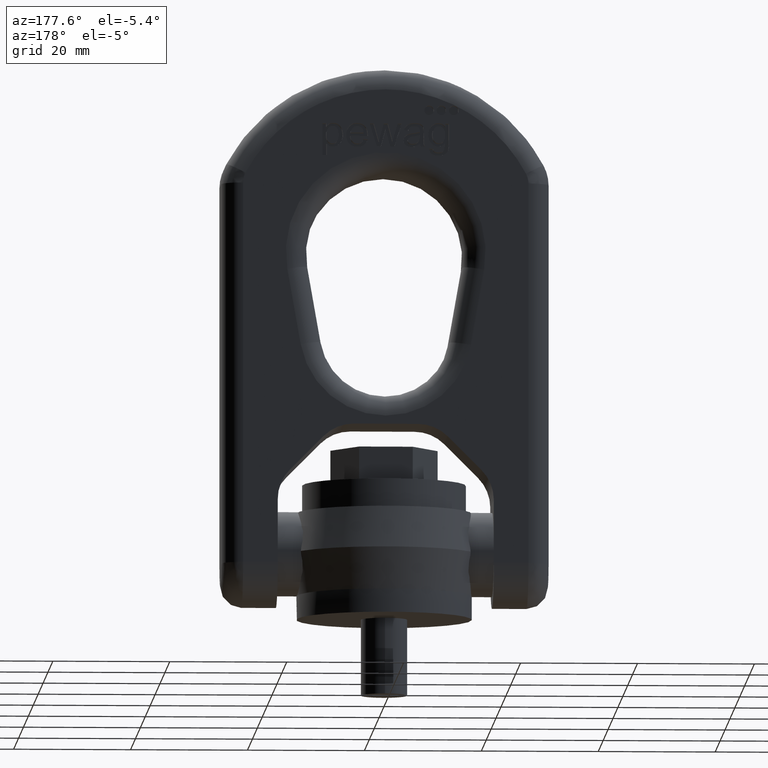
[diagram: clean part render]
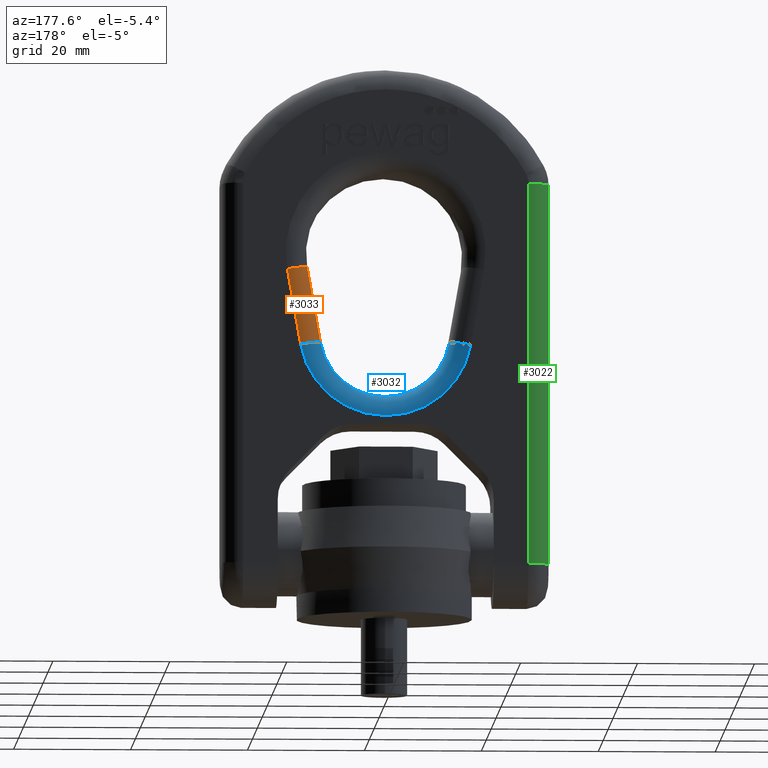
[diagram: same view with three faces highlighted in distinct colors, each labeled with its STEP entity id]
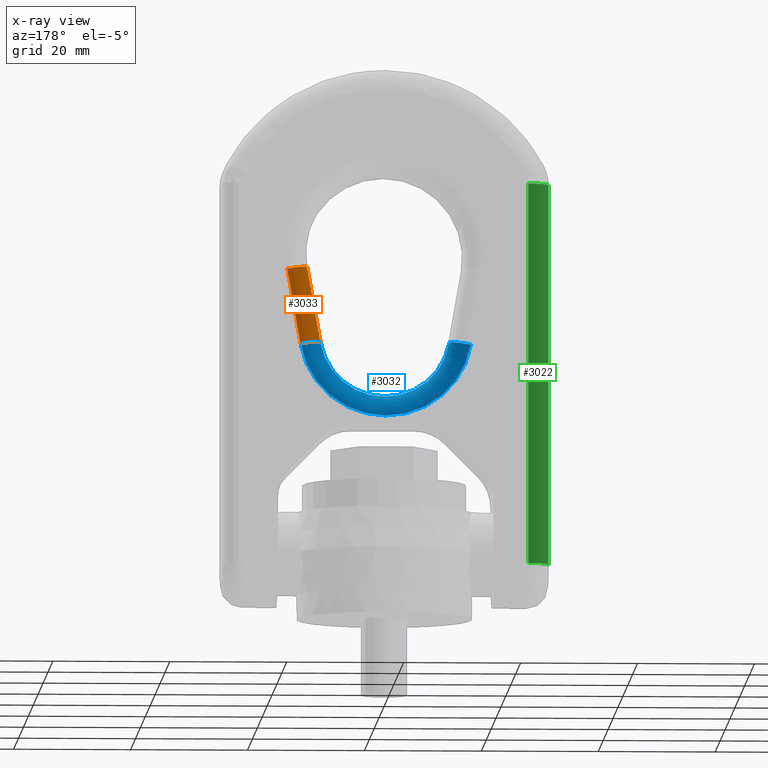
[diagram: x-ray of the same camera — body ghosted, the three highlighted faces saturated]
A machine part, auxiliary view with three faces highlighted in distinct colors.
The next image is the same camera in x-ray (body ghosted, the three faces saturated) — at least one of them is partly hidden behind the body in this view.
Their STEP definitions:

[orange] entity #3033 — the highlighted cylindrical surface (edge-blend (fillet) strip) has radius 3.6 mm, axis along (-0.1736, 0, -0.9848).
#1815=LINE('',#7395,#2123);
#1861=LINE('',#7736,#2169);
#2123=VECTOR('',#6260,1.);
#2169=VECTOR('',#6340,1.);
#2658=FACE_OUTER_BOUND('',#3426,.T.);
#3033=ADVANCED_FACE('',(#2658),#3065,.T.);
#3065=CYLINDRICAL_SURFACE('',#6052,3.6);
#3426=EDGE_LOOP('',(#4669,#4670,#4671,#4672));
#4669=ORIENTED_EDGE('',*,*,#5742,.T.);
#4670=ORIENTED_EDGE('',*,*,#5357,.F.);
#4671=ORIENTED_EDGE('',*,*,#5743,.F.);
#4672=ORIENTED_EDGE('',*,*,#5263,.F.);
#4827=VERTEX_POINT('',#7396);
#4828=VERTEX_POINT('',#7397);
#4915=VERTEX_POINT('',#7731);
#4917=VERTEX_POINT('',#7737);
#5263=EDGE_CURVE('',#4827,#4828,#1815,.T.);
#5357=EDGE_CURVE('',#4915,#4917,#1861,.T.);
#5742=EDGE_CURVE('',#4827,#4917,#5820,.T.);
#5743=EDGE_CURVE('',#4828,#4915,#5821,.T.);
#5820=CIRCLE('',#6049,3.6);
#5821=CIRCLE('',#6051,3.6);
#6049=AXIS2_PLACEMENT_3D('',#9830,#6906,#6907);
#6051=AXIS2_PLACEMENT_3D('',#9832,#6910,#6911);
#6052=AXIS2_PLACEMENT_3D('',#9833,#6912,#6913);
#6260=DIRECTION('',(0.173648177666931,-4.0684217855581E-16,0.984807753012208));
#6340=DIRECTION('',(-0.173648177666931,4.0684217855581E-16,-0.984807753012208));
#6906=DIRECTION('',(0.173648177666931,-4.18377181054746E-16,0.984807753012208));
#6907=DIRECTION('',(0.984807753012208,0.,-0.173648177666931));
#6910=DIRECTION('',(0.173648177666929,-3.34701744843793E-16,0.984807753012208));
#6911=DIRECTION('',(0.984807753012208,0.,-0.173648177666929));
#6912=DIRECTION('',(-0.173648177666931,4.0684217855581E-16,-0.984807753012208));
#6913=DIRECTION('',(-0.984807753012208,0.,0.173648177666931));
#7395=CARTESIAN_POINT('',(16.8402125765088,7.19999999999996,59.5306161618955));
#7396=CARTESIAN_POINT('',(14.5638083411067,7.19999999999997,46.6204862075592));
#7397=CARTESIAN_POINT('',(16.8402125765088,7.19999999999996,59.5306161618955));
#7731=CARTESIAN_POINT('',(13.2949046656648,3.59999999999996,60.1557496014964));
#7736=CARTESIAN_POINT('',(11.0185004302628,3.59999999999997,47.2456196471602));
#7737=CARTESIAN_POINT('',(11.0185004302628,3.59999999999998,47.2456196471602));
#9830=CARTESIAN_POINT('',(14.5638083411067,3.59999999999997,46.6204862075592));
#9832=CARTESIAN_POINT('',(16.8402125765088,3.59999999999996,59.5306161618955));
#9833=CARTESIAN_POINT('',(16.9637198504875,3.59999999999996,60.2310607194015));

[blue] entity #3032 — the highlighted toroidal blend (fillet) surface has major radius 14.7885 mm and minor (blend) radius 3.6 mm.
#203=TOROIDAL_SURFACE('',#6050,14.7884785599634,3.6);
#2657=FACE_OUTER_BOUND('',#3425,.T.);
#3032=ADVANCED_FACE('',(#2657),#203,.T.);
#3425=EDGE_LOOP('',(#4665,#4666,#4667,#4668));
#4665=ORIENTED_EDGE('',*,*,#5741,.F.);
#4666=ORIENTED_EDGE('',*,*,#5372,.F.);
#4667=ORIENTED_EDGE('',*,*,#5742,.F.);
#4668=ORIENTED_EDGE('',*,*,#5266,.F.);
#4827=VERTEX_POINT('',#7396);
#4830=VERTEX_POINT('',#7401);
#4912=VERTEX_POINT('',#7723);
#4917=VERTEX_POINT('',#7737);
#5266=EDGE_CURVE('',#4830,#4827,#5776,.T.);
#5372=EDGE_CURVE('',#4917,#4912,#5793,.T.);
#5741=EDGE_CURVE('',#4912,#4830,#5819,.T.);
#5742=EDGE_CURVE('',#4827,#4917,#5820,.T.);
#5776=CIRCLE('',#5883,14.7884785599634);
#5793=CIRCLE('',#5907,11.1884785599634);
#5819=CIRCLE('',#6048,3.6);
#5820=CIRCLE('',#6049,3.6);
#5883=AXIS2_PLACEMENT_3D('',#7402,#6264,#6265);
#5907=AXIS2_PLACEMENT_3D('',#7769,#6367,#6368);
#6048=AXIS2_PLACEMENT_3D('',#9829,#6904,#6905);
#6049=AXIS2_PLACEMENT_3D('',#9830,#6906,#6907);
#6050=AXIS2_PLACEMENT_3D('',#9831,#6908,#6909);
#6264=DIRECTION('',(-2.34291072916505E-15,-1.,0.));
#6265=DIRECTION('',(-1.,2.34604725420937E-15,0.));
#6367=DIRECTION('',(2.34291072916505E-15,1.,0.));
#6368=DIRECTION('',(-1.,2.32568279951526E-15,0.));
#6904=DIRECTION('',(-0.173648177666929,4.18377181054742E-16,0.984807753012208));
#6905=DIRECTION('',(0.984807753012208,0.,0.173648177666929));
#6906=DIRECTION('',(0.173648177666931,-4.18377181054746E-16,0.984807753012208));
#6907=DIRECTION('',(0.984807753012208,0.,-0.173648177666931));
#6908=DIRECTION('',(2.34291072916505E-15,1.,0.));
#6909=DIRECTION('',(-1.,2.33485363622772E-15,0.));
#7396=CARTESIAN_POINT('',(14.5638083411067,7.19999999999997,46.6204862075592));
#7401=CARTESIAN_POINT('',(-14.5638083411067,7.20000000000003,46.6204862075592));
#7402=CARTESIAN_POINT('',(8.43447862499418E-15,7.2,49.1884785599633));
#7723=CARTESIAN_POINT('',(-11.0185004302628,3.60000000000003,47.2456196471602));
#7737=CARTESIAN_POINT('',(11.0185004302628,3.59999999999998,47.2456196471602));
#7769=CARTESIAN_POINT('',(0.,3.60000000000001,49.1884785599633));
#9829=CARTESIAN_POINT('',(-14.5638083411067,3.60000000000003,46.6204862075592));
#9830=CARTESIAN_POINT('',(14.5638083411067,3.59999999999997,46.6204862075592));
#9831=CARTESIAN_POINT('',(0.,3.6,49.1884785599633));

[green] entity #3022 — the highlighted cylindrical surface (edge-blend (fillet) strip) has radius 3.6 mm, axis along (-0, 0, -1).
#1823=LINE('',#7423,#2131);
#1865=LINE('',#7745,#2173);
#2131=VECTOR('',#6282,1.);
#2173=VECTOR('',#6346,1.);
#2647=FACE_OUTER_BOUND('',#3415,.T.);
#3022=ADVANCED_FACE('',(#2647),#3062,.T.);
#3062=CYLINDRICAL_SURFACE('',#6035,3.6);
#3415=EDGE_LOOP('',(#4625,#4626,#4627,#4628));
#4625=ORIENTED_EDGE('',*,*,#5729,.T.);
#4626=ORIENTED_EDGE('',*,*,#5361,.F.);
#4627=ORIENTED_EDGE('',*,*,#5732,.F.);
#4628=ORIENTED_EDGE('',*,*,#5278,.F.);
#4739=VERTEX_POINT('',#7058);
#4840=VERTEX_POINT('',#7424);
#4920=VERTEX_POINT('',#7744);
#4921=VERTEX_POINT('',#7746);
#5278=EDGE_CURVE('',#4739,#4840,#1823,.T.);
#5361=EDGE_CURVE('',#4920,#4921,#1865,.T.);
#5729=EDGE_CURVE('',#4739,#4921,#5807,.T.);
#5732=EDGE_CURVE('',#4840,#4920,#5810,.T.);
#5807=CIRCLE('',#6030,3.6);
#5810=CIRCLE('',#6034,3.6);
#6030=AXIS2_PLACEMENT_3D('',#9715,#6868,#6869);
#6034=AXIS2_PLACEMENT_3D('',#9735,#6876,#6877);
#6035=AXIS2_PLACEMENT_3D('',#9736,#6878,#6879);
#6282=DIRECTION('',(1.4065325480893E-16,-3.29538019783828E-31,1.));
#6346=DIRECTION('',(-1.4065325480893E-16,3.29538019783828E-31,-1.));
#6868=DIRECTION('',(0.,0.,1.));
#6869=DIRECTION('',(1.,0.,0.));
#6876=DIRECTION('',(0.,0.,1.));
#6877=DIRECTION('',(1.,0.,0.));
#6878=DIRECTION('',(-1.4065325480893E-16,3.29538019783828E-31,-1.));
#6879=DIRECTION('',(-1.,0.,0.));
#7058=CARTESIAN_POINT('',(-24.4,7.20000000000006,9.20000000000003));
#7423=CARTESIAN_POINT('',(-24.4,7.20000000000006,74.324996872654));
#7424=CARTESIAN_POINT('',(-24.4,7.20000000000006,74.324996872654));
#7744=CARTESIAN_POINT('',(-28.,3.60000000000006,74.324996872654));
#7745=CARTESIAN_POINT('',(-28.,3.60000000000006,9.20000000000003));
#7746=CARTESIAN_POINT('',(-28.,3.6,9.20000000000003));
#9715=CARTESIAN_POINT('',(-24.4,3.6,9.20000000000003));
#9735=CARTESIAN_POINT('',(-24.4,3.60000000000006,74.324996872654));
#9736=CARTESIAN_POINT('',(-24.4,3.60000000000006,63.2222222222222));